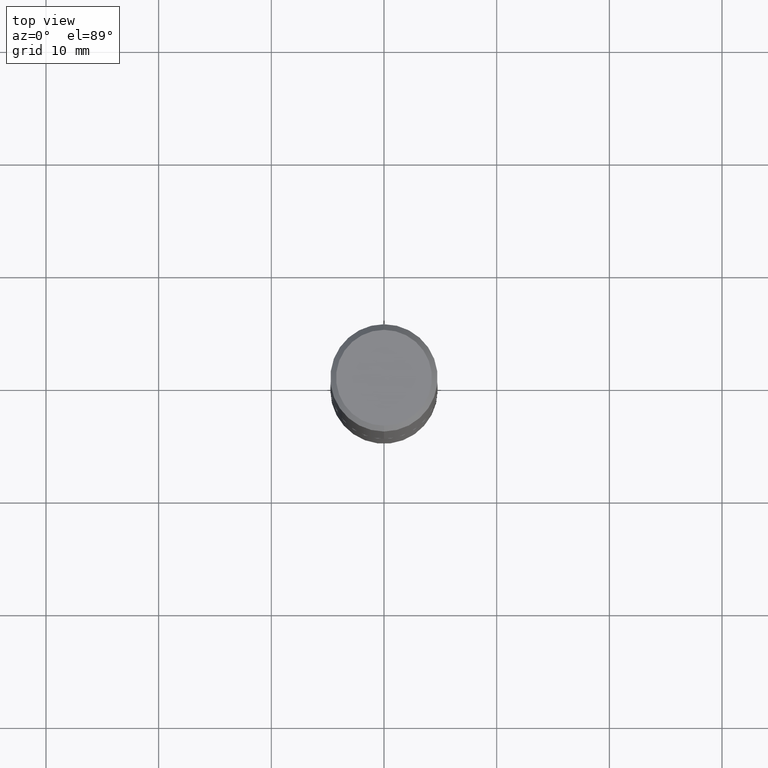
[diagram: clean part render]
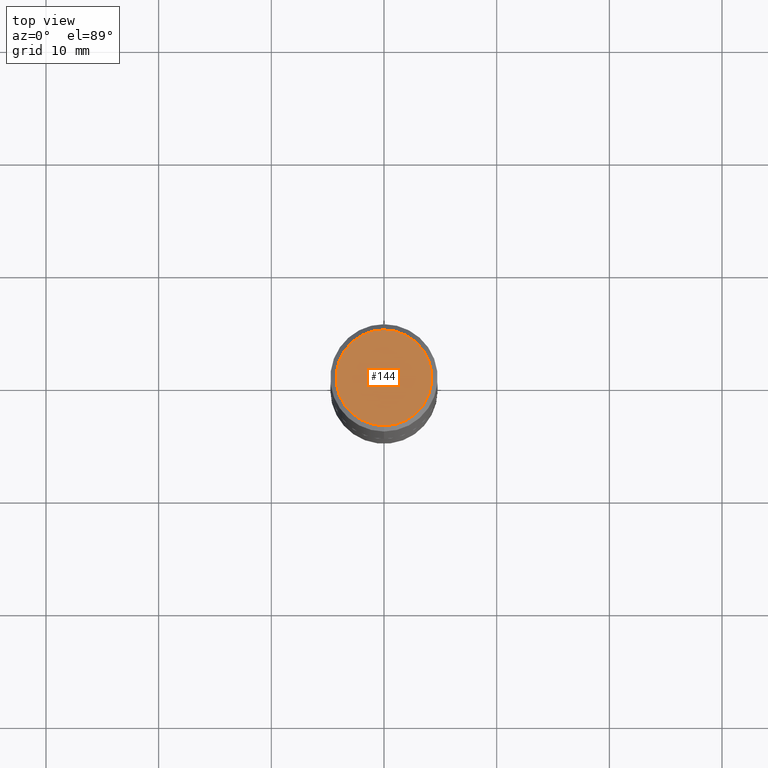
[diagram: same view with one face highlighted and labeled with its STEP entity id]
A machine part, top view. The second image highlights one B-rep face of the part: STEP entity #144.
In plain terms, the highlighted planar face has unit normal (0, -0, -1).
Its self-contained STEP definition (entity closure, byte-faithful):
#9 = VERTEX_POINT ( 'NONE', #269 ) ;
#16 = ORIENTED_EDGE ( 'NONE', *, *, #111, .T. ) ;
#17 = ORIENTED_EDGE ( 'NONE', *, *, #312, .T. ) ;
#108 = CARTESIAN_POINT ( 'NONE',  ( 1.239475875289312499E-15, 0.1675000000000000100, -6.147027116869298551E-16 ) ) ;
#111 = EDGE_CURVE ( 'NONE', #9, #112, #283, .T. ) ;
#112 = VERTEX_POINT ( 'NONE', #108 ) ;
#137 = CARTESIAN_POINT ( 'NONE',  ( 1.169646248512449595E-15, 0.1675000000000000100, -5.997178120976420969E-16 ) ) ;
#138 = DIRECTION ( 'NONE',  ( -6.982962677686265922E-15, -1.000000000000000000, 3.490942761243906817E-15 ) ) ;
#143 = AXIS2_PLACEMENT_3D ( 'NONE', #249, #321, #138 ) ;
#144 = ADVANCED_FACE ( 'NONE', ( #151 ), #293, .F. ) ;
#150 = DIRECTION ( 'NONE',  ( 2.445844892912588876E-29, -3.490942761243906423E-15, -1.000000000000000000 ) ) ;
#151 = FACE_OUTER_BOUND ( 'NONE', #334, .T. ) ;
#162 = CARTESIAN_POINT ( 'NONE',  ( 7.330148026253442751E-46, -1.046228534983812136E-31, -2.996979917857535013E-17 ) ) ;
#194 = DIRECTION ( 'NONE',  ( 6.982962677686265922E-15, 1.000000000000000000, -3.490942761243906423E-15 ) ) ;
#236 = AXIS2_PLACEMENT_3D ( 'NONE', #162, #359, #402 ) ;
#249 = CARTESIAN_POINT ( 'NONE',  ( 7.330148026253442751E-46, -1.046228534983812136E-31, -2.996979917857535013E-17 ) ) ;
#263 = CIRCLE ( 'NONE', #236, 0.1675000000000000100 ) ;
#269 = CARTESIAN_POINT ( 'NONE',  ( -1.217738394604446442E-15, -0.1675000000000000100, 5.547631133297791179E-16 ) ) ;
#277 = AXIS2_PLACEMENT_3D ( 'NONE', #137, #150, #194 ) ;
#283 = CIRCLE ( 'NONE', #143, 0.1675000000000000100 ) ;
#293 = PLANE ( 'NONE',  #277 ) ;
#312 = EDGE_CURVE ( 'NONE', #112, #9, #263, .T. ) ;
#321 = DIRECTION ( 'NONE',  ( -2.445844892912588876E-29, 3.490942761243906817E-15, 1.000000000000000000 ) ) ;
#334 = EDGE_LOOP ( 'NONE', ( #17, #16 ) ) ;
#359 = DIRECTION ( 'NONE',  ( -2.445844892912588876E-29, 3.490942761243906817E-15, 1.000000000000000000 ) ) ;
#402 = DIRECTION ( 'NONE',  ( -6.982962677686265922E-15, -1.000000000000000000, 3.490942761243906817E-15 ) ) ;